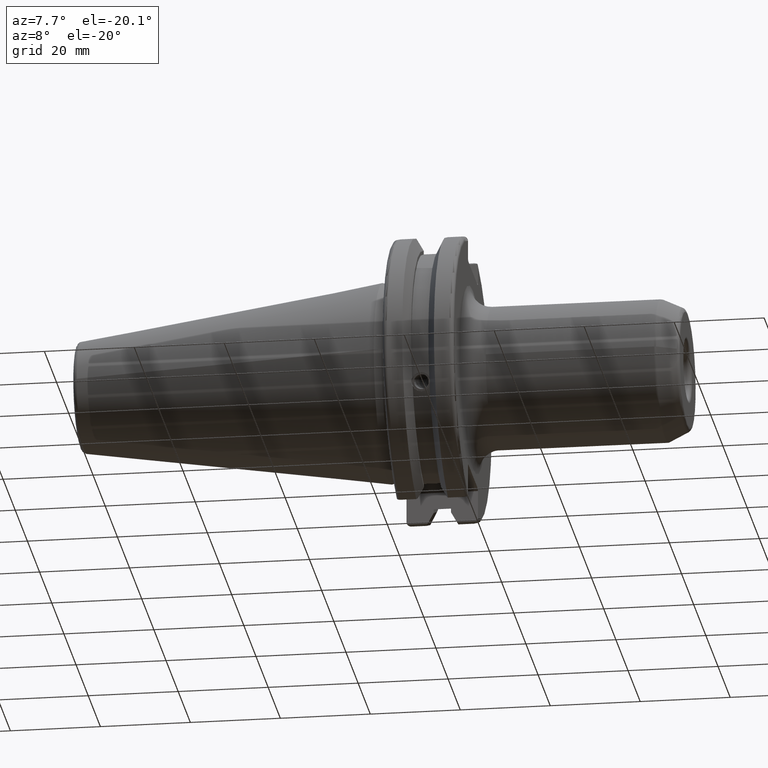
[diagram: clean part render]
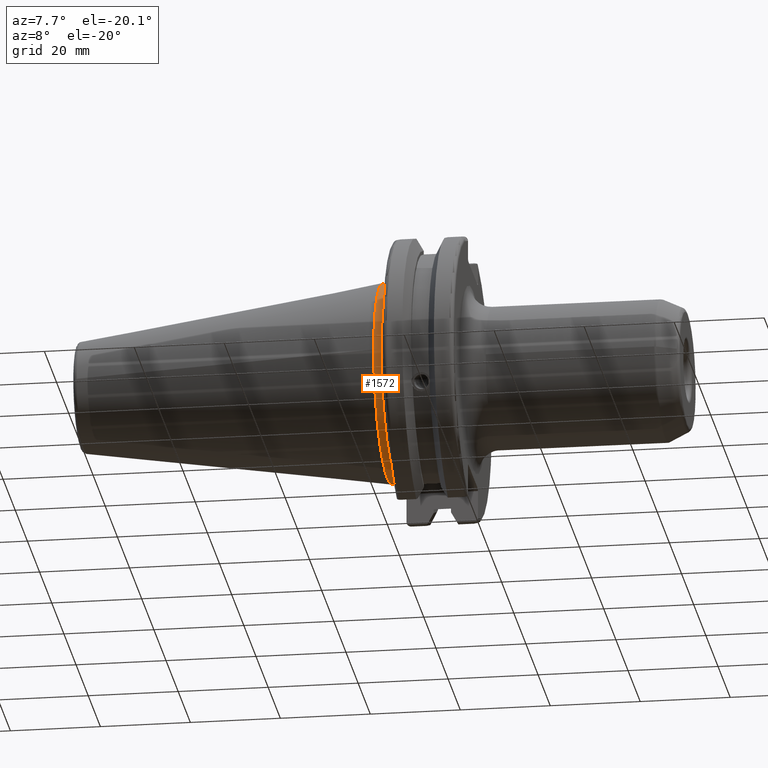
[diagram: same view with one face highlighted and labeled with its STEP entity id]
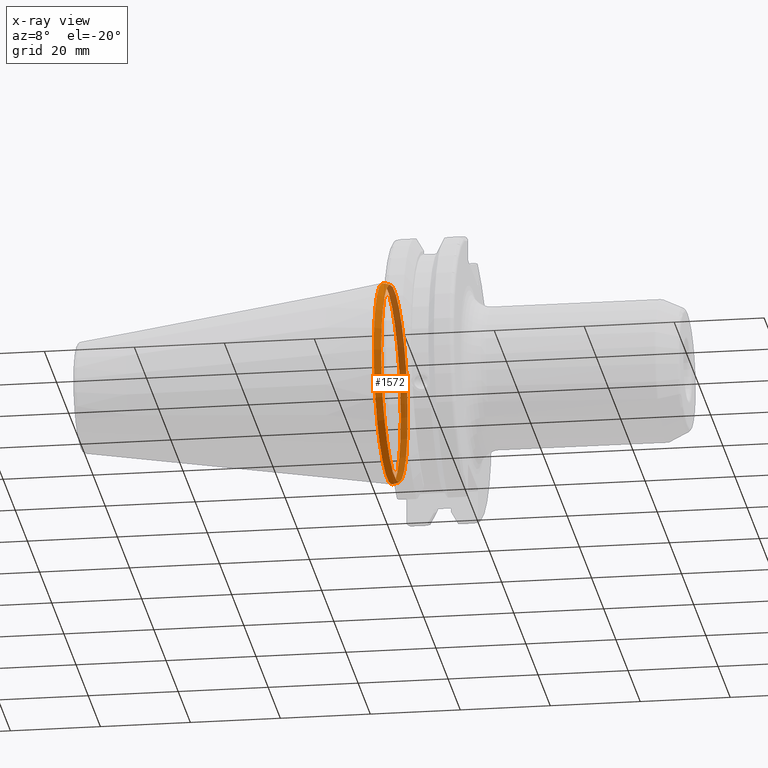
[diagram: x-ray of the same camera — body ghosted, the highlighted face saturated]
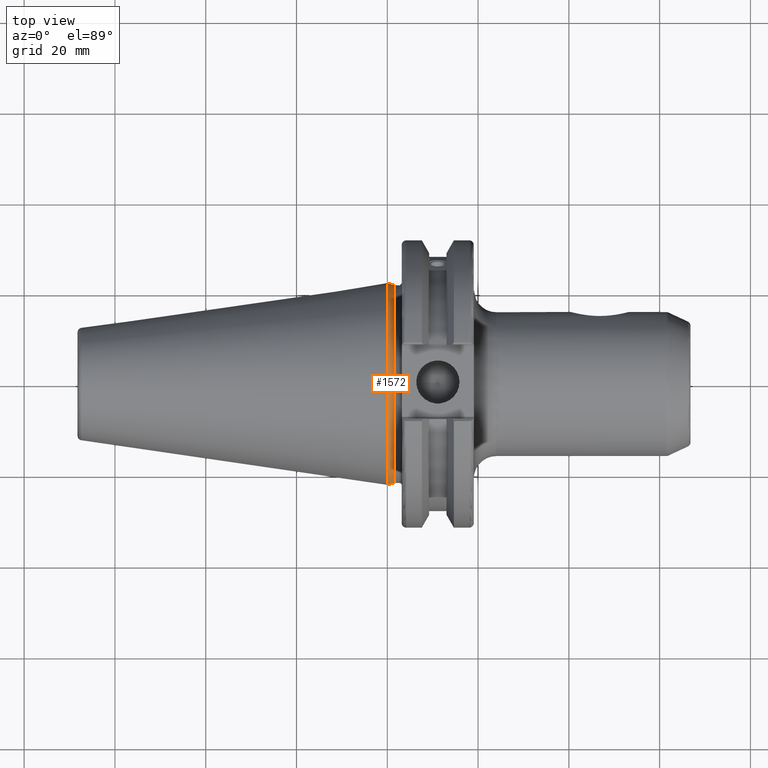
[diagram: same view with one face highlighted and labeled with its STEP entity id]
A machine part, auxiliary view. The second image highlights one B-rep face of the part: STEP entity #1572.
The next image is the same camera in x-ray: the body ghosted, the highlighted face saturated — about 48% of this face is hidden behind the body in this view.
A second angle (top view) of the same face is appended — the face is thin or edge-on in the first view.
In plain terms, the highlighted conical surface has half-angle 15 deg.
Its self-contained STEP definition (entity closure, byte-faithful):
#60=CONICAL_SURFACE('',#1772,22.0125,0.261799387799148);
#187=LINE('',#3080,#279);
#279=VECTOR('',#2219,22.0125);
#440=FACE_OUTER_BOUND('',#541,.T.);
#541=EDGE_LOOP('',(#1464,#1465,#1466,#1467));
#596=CIRCLE('',#1710,21.8);
#607=CIRCLE('',#1736,22.225);
#734=VERTEX_POINT('',#2804);
#764=VERTEX_POINT('',#3007);
#927=EDGE_CURVE('',#734,#734,#596,.T.);
#976=EDGE_CURVE('',#764,#764,#607,.T.);
#1008=EDGE_CURVE('',#734,#764,#187,.T.);
#1464=ORIENTED_EDGE('',*,*,#927,.F.);
#1465=ORIENTED_EDGE('',*,*,#1008,.T.);
#1466=ORIENTED_EDGE('',*,*,#976,.T.);
#1467=ORIENTED_EDGE('',*,*,#1008,.F.);
#1572=ADVANCED_FACE('',(#440),#60,.T.);
#1710=AXIS2_PLACEMENT_3D('',#2806,#2058,#2059);
#1736=AXIS2_PLACEMENT_3D('',#3008,#2126,#2127);
#1772=AXIS2_PLACEMENT_3D('',#3079,#2217,#2218);
#2058=DIRECTION('center_axis',(1.,0.,0.));
#2059=DIRECTION('ref_axis',(0.,0.,-1.));
#2126=DIRECTION('center_axis',(1.,0.,0.));
#2127=DIRECTION('ref_axis',(0.,0.,-1.));
#2217=DIRECTION('center_axis',(-1.,0.,0.));
#2218=DIRECTION('ref_axis',(0.,1.,0.));
#2219=DIRECTION('',(-0.965925826289069,-0.258819045102519,-3.16961915143175E-17));
#2804=CARTESIAN_POINT('',(1.58612159321676,-21.8,-2.66973002214123E-15));
#2806=CARTESIAN_POINT('Origin',(1.58612159321676,0.,0.));
#3007=CARTESIAN_POINT('',(0.,-22.225,-2.72177751110499E-15));
#3008=CARTESIAN_POINT('Origin',(0.,0.,0.));
#3079=CARTESIAN_POINT('Origin',(0.793060796608382,0.,0.));
#3080=CARTESIAN_POINT('',(0.793060796608382,-22.0125,-2.69575376662311E-15));